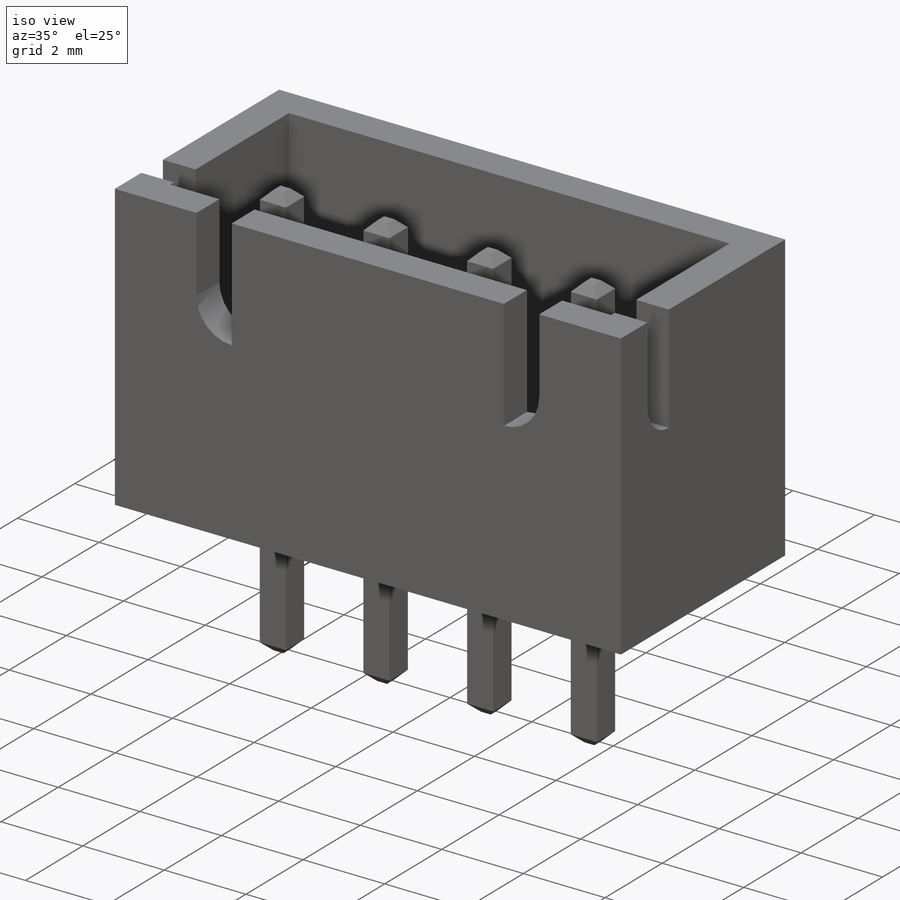
[diagram: iso view]
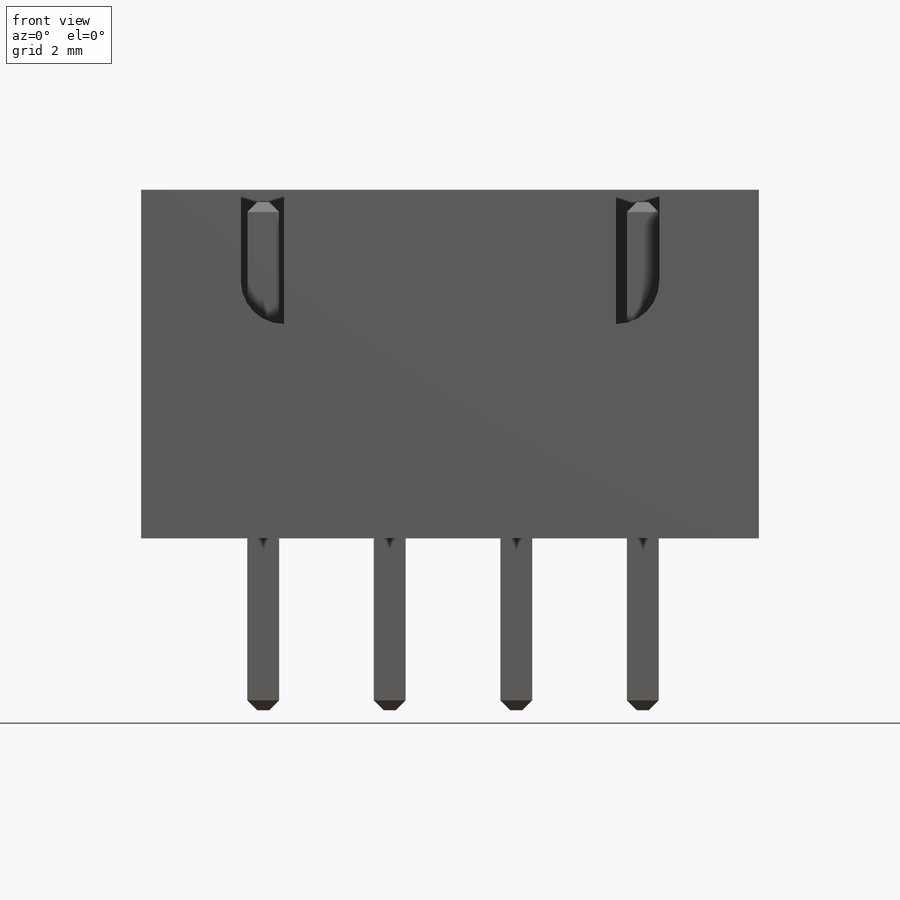
[diagram: front view]
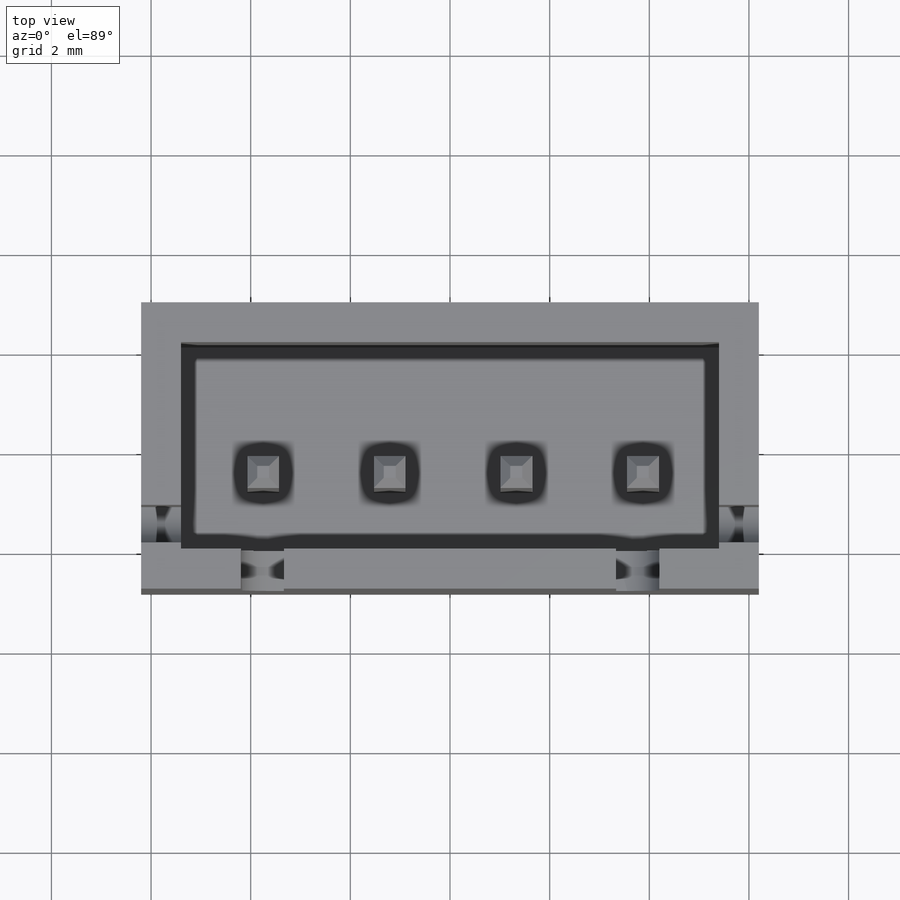
[diagram: top view]
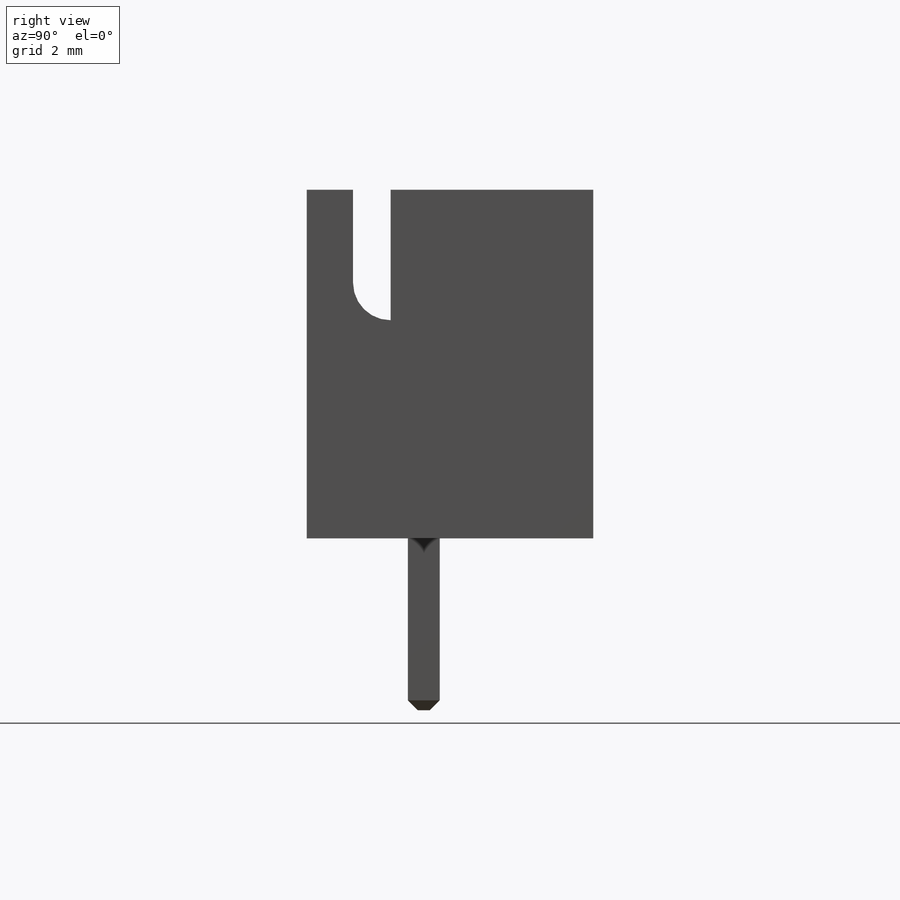
[diagram: right view]
SOLIDWORKS PART (.sldprt)
format: sldprt  version: not decoded by parser v0  size: 252,416 bytes
history: native  units: mm
features: sketch x4, extrude x2, cut_extrude x2, material x1, shell x1, chamfer x1 (+13 scaffold rows collapsed)
feature tree (24):
  scaffold x13  (default folders/planes/origin — collapsed)
  material  "Материал <не указан>"
  sketch  "Sketch1"  dims[D1=5.75mm D2=12.4mm]
  extrude  "Boss-Extrude1"  Depth=7mm
  shell  "Shell1"  Thickness=0.8mm
  sketch  "Sketch2"
  cut_extrude  "Cut-Extrude1"  [1 undecoded]
  sketch  "Sketch3"  dims[D1=2.0mm D2=~0.334702mm]
  cut_extrude  "Cut-Extrude2"  [1 undecoded]
  sketch  "Sketch4"  dims[c1.D1=0.64mm c1.D2=0.64mm c1.D3=2.45mm c1.D4=~3.455663mm c2.D4=90.0deg c3.D4=2.35mm c3.D5=4.0]
  extrude  "Boss-Extrude2"  Depth=3.45mm
  chamfer  "Chamfer1"  Distance=0.2mm
decode coverage: 7 of 10 modeling features carry decoded parameters
note: ~ marks probable driven/reference dimensions
note: 2 parameter values undecoded
note: suppression state not decoded; provenance and decode notes live in map.json
